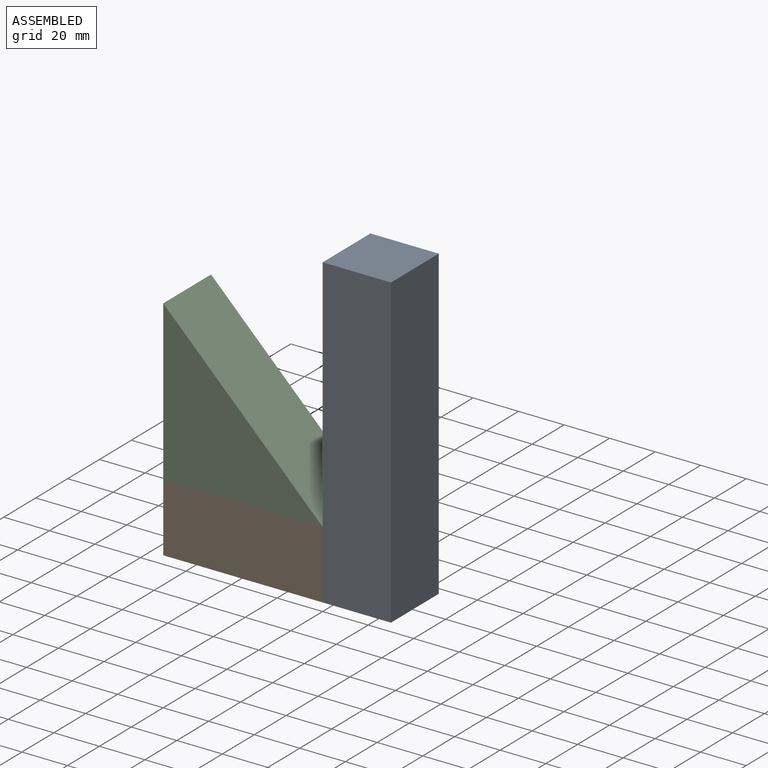
[diagram: assembled view]
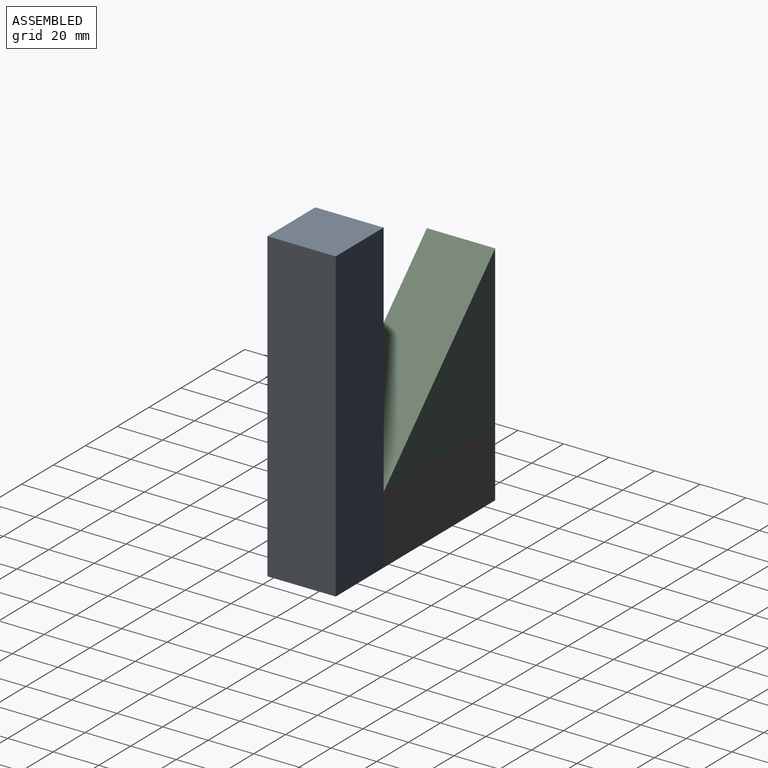
[diagram: assembled view, second angle]
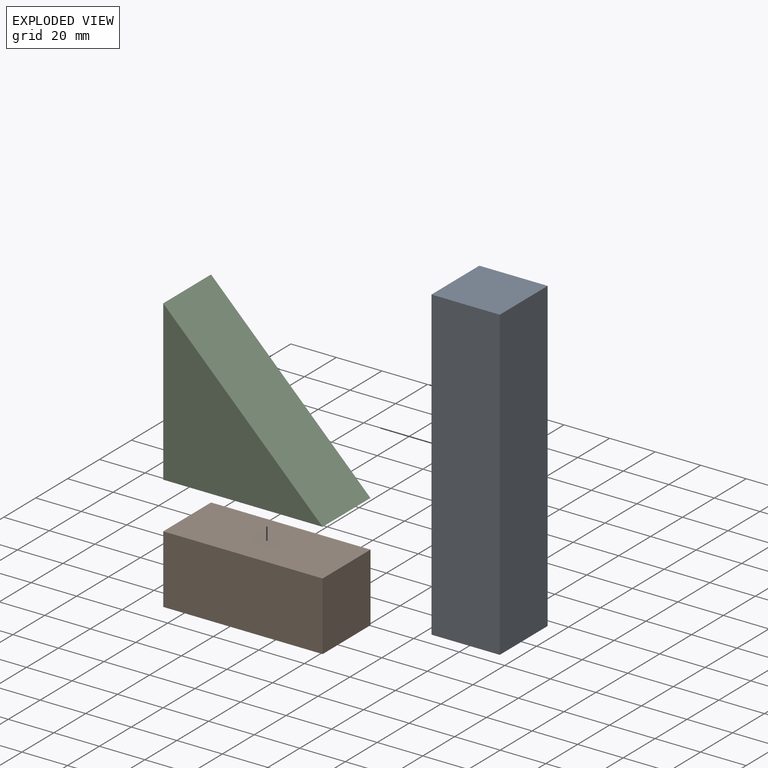
[diagram: exploded view]
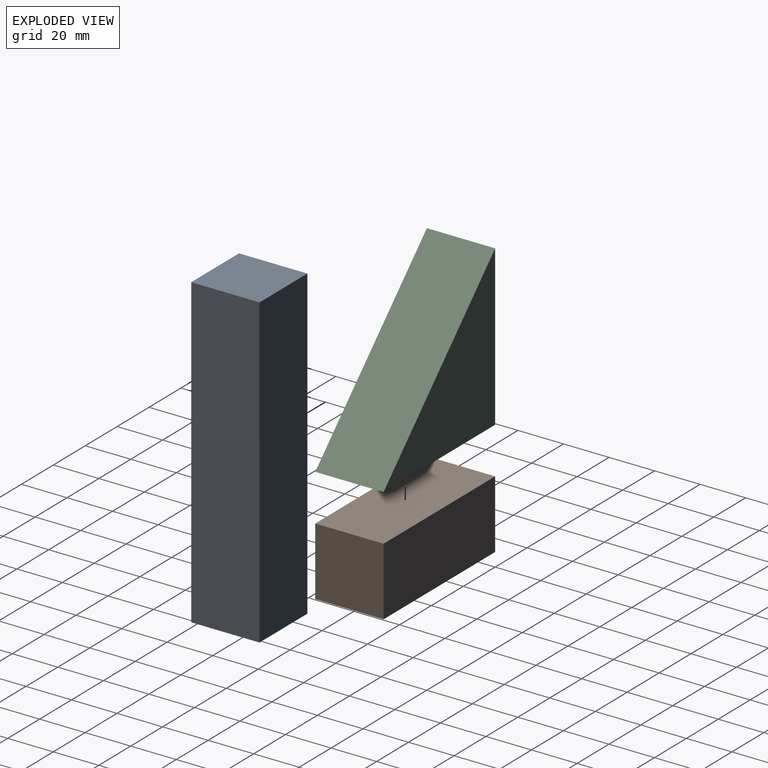
[diagram: exploded view, second angle]
ASSEMBLY  parts=3 mates=8
PART A: 6 faces, bbox 30x30x135 mm
  f0: plane 135x30mm, normal (-1,0,0), area 4050mm2, adj f1,f3,f4,f5
  f1: plane 30x30mm, normal (0,0,-1), area 900mm2, adj f0,f2,f4,f5
  f2: plane 135x30mm, normal (1,0,0), area 4050mm2, adj f1,f3,f4,f5
  f3: plane 30x30mm, normal (0,0,1), area 900mm2, adj f0,f2,f4,f5
  f4: plane 135x30mm, normal (0,-1,0), area 4050mm2, adj f0,f1,f2,f3
  f5: plane 135x30mm, normal (0,1,0), area 4050mm2, adj f0,f1,f2,f3
PART B: 6 faces, bbox 70x30x30 mm
  f0: plane 30x30mm, normal (-1,0,0), area 900mm2, adj f1,f3,f4,f5
  f1: plane 70x30mm, normal (0,0,-1), area 2100mm2, adj f0,f2,f4,f5
  f2: plane 30x30mm, normal (1,0,0), area 900mm2, adj f1,f3,f4,f5
  f3: plane 70x30mm, normal (0,0,1), area 2100mm2, adj f0,f2,f4,f5
  f4: plane 70x30mm, normal (0,-1,0), area 2100mm2, adj f0,f1,f2,f3
  f5: plane 70x30mm, normal (0,1,0), area 2100mm2, adj f0,f1,f2,f3
PART C: 5 faces, bbox 70x30x70 mm
  f0: plane 70x30mm, normal (-1,0,0), area 2100mm2, adj f1,f2,f3,f4
  f1: plane 70x30mm, normal (0,0,-1), area 2100mm2, adj f0,f2,f3,f4
  f2: plane 70x70mm, normal (0.71,0,0.71), area 2969.8mm2, adj f0,f1,f3,f4
  f3: plane 70x70mm, normal (0,-1,0), area 2450mm2, adj f0,f1,f2
  f4: plane 70x70mm, normal (0,1,0), area 2450mm2, adj f0,f1,f2
PLACE A rot(axis=(0,-1,0),180deg) t=(33.96,-44.18,226.22)mm
PLACE B t=(-66.04,-44.18,91.22)mm
PLACE C t=(-66.04,-44.18,121.22)mm
MATE planar B.f1 <-> A.f3  axis (0,0,-1) through (-31.04,-59.18,91.22)mm
MATE planar C.f3 <-> B.f4  axis (0,-1,0) through (-42.71,-74.18,144.56)mm
MATE planar B.f5 <-> A.f5  axis (0,1,0) through (-31.04,-44.18,106.22)mm
MATE planar A.f2 <-> B.f2  axis (-1,0,0) through (3.96,-59.18,158.72)mm
MATE planar A.f3 <-> B.f1  axis (0,0,-1) through (18.96,-59.18,91.22)mm
MATE planar C.f0 <-> B.f0  axis (-1,0,0) through (-66.04,-59.18,156.22)mm
MATE planar A.f2 <-> B.f2  axis (-1,0,0) through (3.96,-59.18,158.72)mm
MATE planar C.f1 <-> B.f3  axis (0,0,-1) through (-31.04,-59.18,121.22)mm
